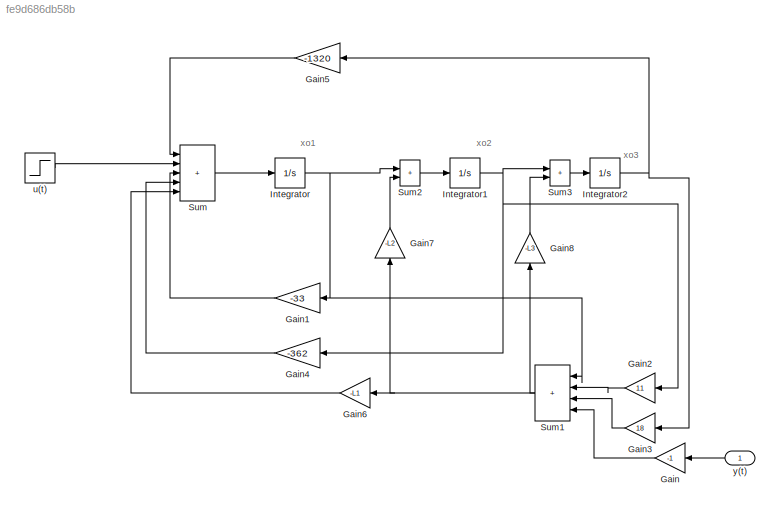
MODEL slx_fe9d686db58b
KIND model
CONFIG AbsTol = auto
CONFIG EnableMultiTasking = off
CONFIG FixedStep = auto
CONFIG MaxStep = auto
CONFIG MinStep = auto
CONFIG RelTol = 1e-3
CONFIG SampleTimeConstraint = Unconstrained
CONFIG SolverName = VariableStepAuto
CONFIG StartTime = 0.0
CONFIG StopTime = 10.0
BLOCK [Gain] Gain
  Gain = -1
  NameLocation = top
BLOCK [Gain] Gain1
  Gain = -33
  NameLocation = top
BLOCK [Gain] Gain2
  Gain = 11
  NameLocation = top
BLOCK [Gain] Gain3
  Gain = 18
  NameLocation = top
BLOCK [Gain] Gain4
  Gain = -362
  NameLocation = top
BLOCK [Gain] Gain5
  Gain = -1320
  NameLocation = top
BLOCK [Gain] Gain6
  Gain = -L1
  NameLocation = top
BLOCK [Gain] Gain7
  Gain = -L2
  NameLocation = right
BLOCK [Gain] Gain8
  Gain = -L3
  NameLocation = right
BLOCK [Integrator] Integrator
  Ports = [1, 1]
BLOCK [Integrator] Integrator1
  Ports = [1, 1]
BLOCK [Integrator] Integrator2
  Ports = [1, 1]
BLOCK [Sum] Sum
  IconShape = rectangular
  Inputs = |+++++
  Ports = [5, 1]
BLOCK [Sum] Sum1
  IconShape = rectangular
  Inputs = |++++
  NameLocation = top
  Ports = [4, 1]
BLOCK [Sum] Sum2
  IconShape = rectangular
  Inputs = |++
  Ports = [2, 1]
BLOCK [Sum] Sum3
  IconShape = rectangular
  Inputs = |++
  Ports = [2, 1]
BLOCK [Step] u(t)
  SampleTime = 0
BLOCK [Inport] y(t)
  NameLocation = top
ANNOTATION (root): xo1
ANNOTATION (root): xo2
ANNOTATION (root): xo3
LINE Gain1:1 -> Sum:3
LINE Gain2:1 -> Sum1:2
LINE Gain3:1 -> Sum1:3
LINE Gain4:1 -> Sum:4
LINE Gain5:1 -> Sum:1
LINE Gain6:1 -> Sum:5
LINE Gain7:1 -> Sum2:2
LINE Gain8:1 -> Sum3:2
LINE Gain:1 -> Sum1:4
NET Integrator1:1 -> Gain2:1, Gain4:1, Sum3:1
NET Integrator2:1 -> Gain3:1, Gain5:1
NET Integrator:1 -> Gain1:1, Sum1:1, Sum2:1
NET Sum1:1 -> Gain6:1, Gain7:1, Gain8:1
LINE Sum2:1 -> Integrator1:1
LINE Sum3:1 -> Integrator2:1
LINE Sum:1 -> Integrator:1
LINE u(t):1 -> Sum:2
LINE y(t):1 -> Gain:1
note: NET lines group one-source signal fan-out (src -> all destinations, sorted); 1:1 wires keep LINE
